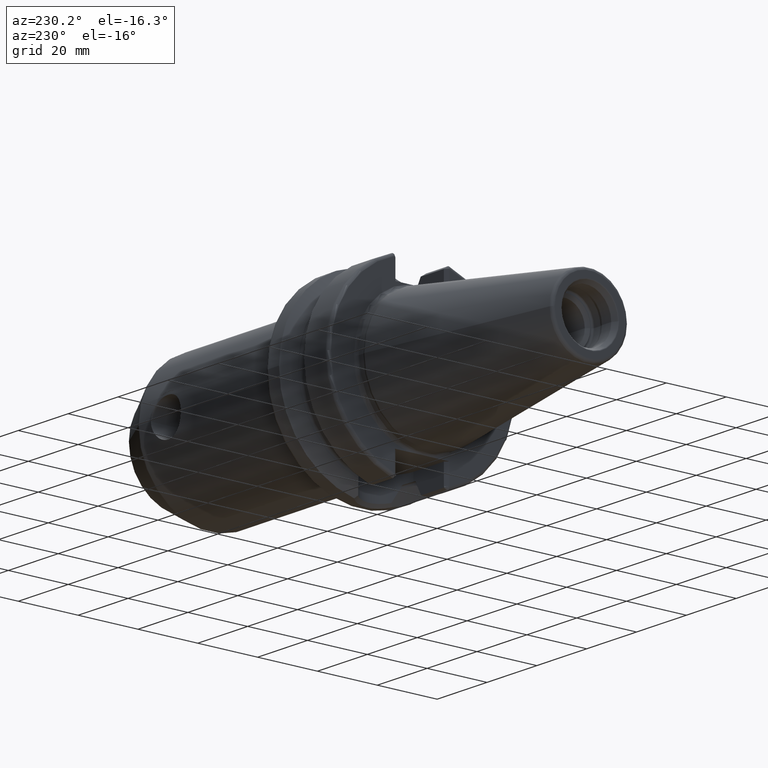
[diagram: clean part render]
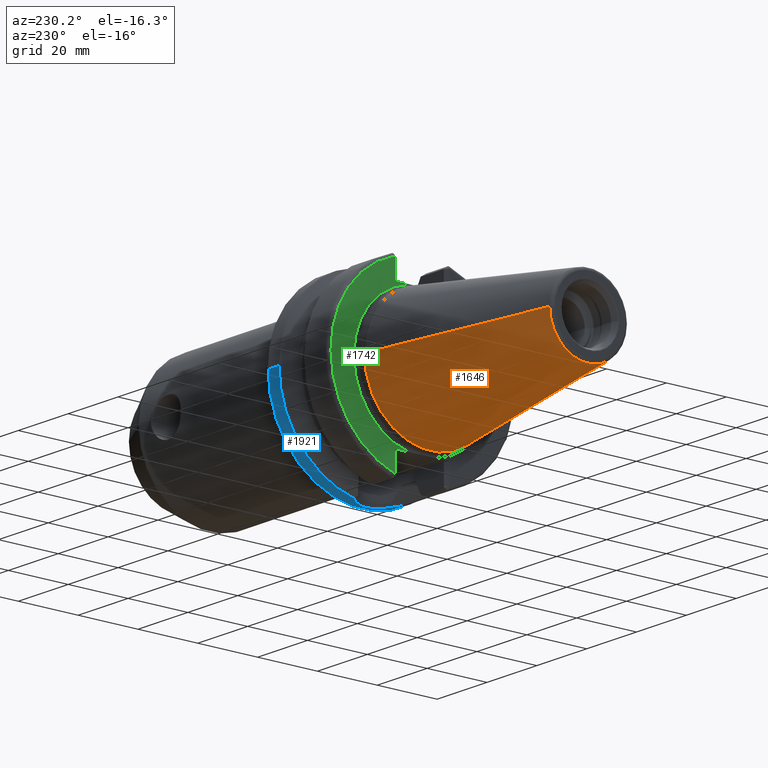
[diagram: same view with three faces highlighted in distinct colors, each labeled with its STEP entity id]
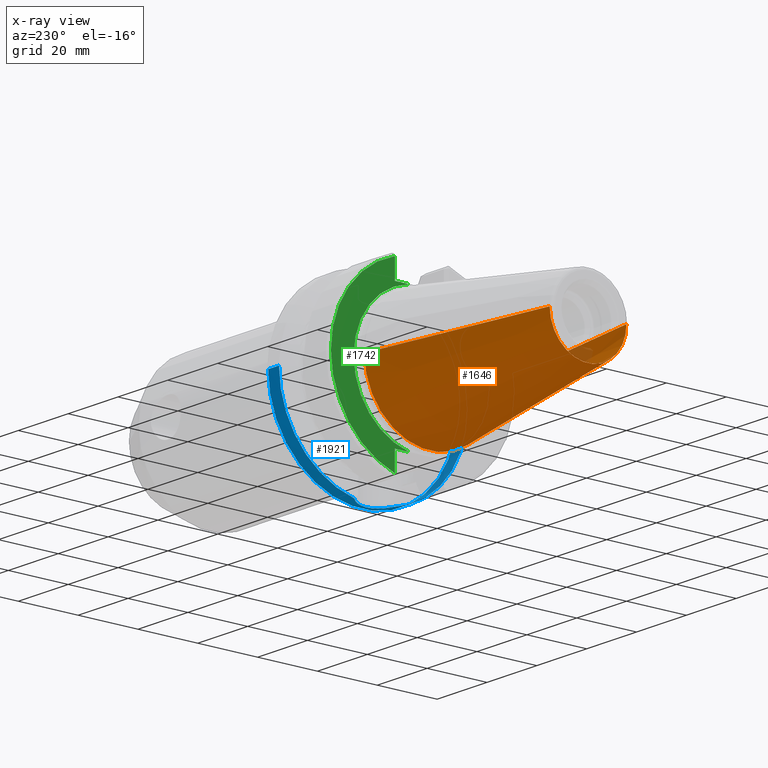
[diagram: x-ray of the same camera — body ghosted, the three highlighted faces saturated]
A machine part, auxiliary view with three faces highlighted in distinct colors.
The next image is the same camera in x-ray (body ghosted, the three faces saturated) — at least one of them is partly hidden behind the body in this view.
Their STEP definitions:

[orange] entity #1646 — the highlighted conical surface has half-angle 8.298 deg.
#32=CARTESIAN_POINT('',(-6.454431866917E1,0.E0,0.E0));
#33=DIRECTION('',(-1.E0,0.E0,0.E0));
#34=DIRECTION('',(0.E0,1.E0,0.E0));
#35=AXIS2_PLACEMENT_3D('',#32,#33,#34);
#47=DIRECTION('',(-9.895312636440E-1,-1.443186691705E-1,0.E0));
#48=VECTOR('',#47,6.394703124850E1);
#49=CARTESIAN_POINT('',(-1.266732031557E0,2.204025284980E1,0.E0));
#50=LINE('',#49,#48);
#51=DIRECTION('',(-9.895312636440E-1,1.443186691705E-1,0.E0));
#52=VECTOR('',#51,6.394703124850E1);
#53=CARTESIAN_POINT('',(-1.266732031557E0,-2.204025284980E1,0.E0));
#54=LINE('',#53,#52);
#55=CARTESIAN_POINT('',(-1.266732031557E0,0.E0,0.E0));
#56=DIRECTION('',(-1.E0,0.E0,0.E0));
#57=DIRECTION('',(0.E0,1.E0,0.E0));
#58=AXIS2_PLACEMENT_3D('',#55,#56,#57);
#1314=CARTESIAN_POINT('',(-6.454431866917E1,1.281150240261E1,0.E0));
#1316=VERTEX_POINT('',#1314);
#1318=CARTESIAN_POINT('',(-6.454431866917E1,-1.281150240261E1,0.E0));
#1320=VERTEX_POINT('',#1318);
#1533=CARTESIAN_POINT('',(-1.266732031557E0,2.204025284980E1,0.E0));
#1534=VERTEX_POINT('',#1533);
#1535=CARTESIAN_POINT('',(-1.266732031557E0,-2.204025284980E1,0.E0));
#1536=VERTEX_POINT('',#1535);
#1634=CARTESIAN_POINT('',(-3.290552535036E1,0.E0,0.E0));
#1635=DIRECTION('',(1.E0,0.E0,0.E0));
#1636=DIRECTION('',(0.E0,-1.E0,0.E0));
#1637=AXIS2_PLACEMENT_3D('',#1634,#1635,#1636);
#1638=CONICAL_SURFACE('',#1637,1.742587762621E1,8.297826828206E0);
#1639=ORIENTED_EDGE('',*,*,#1624,.T.);
#1640=ORIENTED_EDGE('',*,*,#1601,.T.);
#1641=ORIENTED_EDGE('',*,*,#1628,.F.);
#1643=ORIENTED_EDGE('',*,*,#1642,.F.);
#1644=EDGE_LOOP('',(#1639,#1640,#1641,#1643));
#1645=FACE_OUTER_BOUND('',#1644,.F.);
#1646=ADVANCED_FACE('',(#1645),#1638,.T.);
#36=CIRCLE('',#35,1.281150240261E1);
#59=CIRCLE('',#58,2.204025284980E1);
#1601=EDGE_CURVE('',#1316,#1320,#36,.T.);
#1624=EDGE_CURVE('',#1534,#1316,#50,.T.);
#1628=EDGE_CURVE('',#1536,#1320,#54,.T.);
#1642=EDGE_CURVE('',#1534,#1536,#59,.T.);

[blue] entity #1921 — the highlighted cylindrical surface (partial cylindrical patch) has radius 31.4875 mm, axis along (1, 0, 0).
#246=CARTESIAN_POINT('',(2.162727746897E1,0.E0,0.E0));
#247=DIRECTION('',(1.E0,0.E0,0.E0));
#248=DIRECTION('',(0.E0,-1.E0,0.E0));
#249=AXIS2_PLACEMENT_3D('',#246,#247,#248);
#251=DIRECTION('',(-1.E0,0.E0,0.E0));
#252=VECTOR('',#251,4.372722531031E0);
#253=CARTESIAN_POINT('',(2.6E1,-3.14875E1,0.E0));
#254=LINE('',#253,#252);
#255=CARTESIAN_POINT('',(2.6E1,0.E0,0.E0));
#256=DIRECTION('',(-1.E0,0.E0,0.E0));
#257=DIRECTION('',(0.E0,1.E0,0.E0));
#258=AXIS2_PLACEMENT_3D('',#255,#256,#257);
#260=DIRECTION('',(-1.E0,0.E0,0.E0));
#261=VECTOR('',#260,4.372722531031E0);
#262=CARTESIAN_POINT('',(2.6E1,3.14875E1,0.E0));
#263=LINE('',#262,#261);
#264=CARTESIAN_POINT('',(2.162727746897E1,0.E0,0.E0));
#265=DIRECTION('',(1.E0,0.E0,0.E0));
#266=DIRECTION('',(0.E0,2.025221356988E-1,-9.792776851088E-1));
#267=AXIS2_PLACEMENT_3D('',#264,#265,#266);
#269=CARTESIAN_POINT('',(2.162727746897E1,-6.376922817779E0,-3.083500464774E1));
#270=CARTESIAN_POINT('',(2.179639421098E1,-6.206831610819E0,-3.087018371088E1));
#271=CARTESIAN_POINT('',(2.232364867117E1,-5.632321227298E0,-3.098422972396E1));
#272=CARTESIAN_POINT('',(2.308132499159E1,-4.553413356838E0,-3.116719517710E1));
#273=CARTESIAN_POINT('',(2.375642364916E1,-3.096696697708E0,-3.134706212903E1));
#274=CARTESIAN_POINT('',(2.416388565718E1,-1.551520318298E0,-3.146240625515E1));
#275=CARTESIAN_POINT('',(2.429615986887E1,3.673173569156E-2,-3.150094402831E1));
#276=CARTESIAN_POINT('',(2.415103100304E1,1.624802494737E0,-3.145868929477E1));
#277=CARTESIAN_POINT('',(2.373074835246E1,3.167093598881E0,-3.133996423654E1));
#278=CARTESIAN_POINT('',(2.304347310477E1,4.618481554386E0,-3.115752883213E1));
#279=CARTESIAN_POINT('',(2.229119413287E1,5.670903386055E0,-3.097688944820E1));
#280=CARTESIAN_POINT('',(2.177863162319E1,6.224695230405E0,-3.086648974378E1));
#281=CARTESIAN_POINT('',(2.162727746897E1,6.376915747817E0,-3.083500610986E1));
#1370=CARTESIAN_POINT('',(2.162727746897E1,3.14875E1,0.E0));
#1372=VERTEX_POINT('',#1370);
#1374=CARTESIAN_POINT('',(2.162727746897E1,-3.14875E1,0.E0));
#1375=CARTESIAN_POINT('',(2.162727746897E1,-6.376922817779E0,
-3.083500464774E1));
#1376=VERTEX_POINT('',#1374);
#1377=VERTEX_POINT('',#1375);
#1378=CARTESIAN_POINT('',(2.6E1,3.14875E1,0.E0));
#1379=VERTEX_POINT('',#1378);
#1380=CARTESIAN_POINT('',(2.6E1,-3.14875E1,0.E0));
#1381=VERTEX_POINT('',#1380);
#1384=CARTESIAN_POINT('',(2.162727746897E1,6.376915747817E0,-3.083500610986E1));
#1385=VERTEX_POINT('',#1384);
#1902=CARTESIAN_POINT('',(-7.002E1,0.E0,0.E0));
#1903=DIRECTION('',(1.E0,0.E0,0.E0));
#1904=DIRECTION('',(0.E0,-1.E0,0.E0));
#1905=AXIS2_PLACEMENT_3D('',#1902,#1903,#1904);
#1906=CYLINDRICAL_SURFACE('',#1905,3.14875E1);
#1908=ORIENTED_EDGE('',*,*,#1907,.F.);
#1910=ORIENTED_EDGE('',*,*,#1909,.F.);
#1912=ORIENTED_EDGE('',*,*,#1911,.F.);
#1914=ORIENTED_EDGE('',*,*,#1913,.T.);
#1916=ORIENTED_EDGE('',*,*,#1915,.F.);
#1918=ORIENTED_EDGE('',*,*,#1917,.F.);
#1919=EDGE_LOOP('',(#1908,#1910,#1912,#1914,#1916,#1918));
#1920=FACE_OUTER_BOUND('',#1919,.F.);
#1921=ADVANCED_FACE('',(#1920),#1906,.T.);
#250=CIRCLE('',#249,3.14875E1);
#259=CIRCLE('',#258,3.14875E1);
#268=CIRCLE('',#267,3.14875E1);
#282=B_SPLINE_CURVE_WITH_KNOTS('',3,(#269,#270,#271,#272,#273,#274,#275,#276,
#277,#278,#279,#280,#281),.UNSPECIFIED.,.F.,.F.,(4,1,1,1,1,1,1,1,1,1,4),(0.E0,
5.022508536415E-2,1.633285299657E-1,2.764319745673E-1,3.895354191688E-1,
5.026388637704E-1,6.157423083720E-1,7.288457529735E-1,8.419491975751E-1,
9.550526421767E-1,1.E0),.UNSPECIFIED.);
#1907=EDGE_CURVE('',#1376,#1377,#250,.T.);
#1909=EDGE_CURVE('',#1381,#1376,#254,.T.);
#1911=EDGE_CURVE('',#1379,#1381,#259,.T.);
#1913=EDGE_CURVE('',#1379,#1372,#263,.T.);
#1915=EDGE_CURVE('',#1385,#1372,#268,.T.);
#1917=EDGE_CURVE('',#1377,#1385,#282,.T.);

[green] entity #1742 — the highlighted planar face has unit normal (1, 0, 0).
#96=CARTESIAN_POINT('',(2.E0,0.E0,0.E0));
#97=DIRECTION('',(-1.E0,0.E0,0.E0));
#98=DIRECTION('',(0.E0,1.E0,0.E0));
#99=AXIS2_PLACEMENT_3D('',#96,#97,#98);
#127=DIRECTION('',(2.137863157138E-6,2.138092596513E-6,9.999999999954E-1));
#128=VECTOR('',#127,6.649288203884E0);
#129=CARTESIAN_POINT('',(1.999985784732E0,9.094985783206E0,-2.909928820385E1));
#130=LINE('',#129,#128);
#131=DIRECTION('',(-4.462834027332E-6,-4.463945839096E-6,9.999999999801E-1));
#132=VECTOR('',#131,6.649296399125E0);
#133=CARTESIAN_POINT('',(2.E0,9.095E0,2.245E1));
#134=LINE('',#133,#132);
#592=CARTESIAN_POINT('',(2.E0,0.E0,0.E0));
#593=DIRECTION('',(-1.E0,0.E0,0.E0));
#594=DIRECTION('',(0.E0,2.983190614061E-1,9.544662055839E-1));
#595=AXIS2_PLACEMENT_3D('',#592,#593,#594);
#688=DIRECTION('',(0.E0,1.E0,0.E0));
#689=VECTOR('',#688,4.706022328605E0);
#690=CARTESIAN_POINT('',(2.E0,4.388977671395E0,2.245E1));
#691=LINE('',#690,#689);
#709=CARTESIAN_POINT('',(2.E0,0.E0,0.E0));
#710=DIRECTION('',(1.E0,0.E0,0.E0));
#711=DIRECTION('',(0.E0,1.E0,0.E0));
#712=AXIS2_PLACEMENT_3D('',#709,#710,#711);
#746=DIRECTION('',(0.E0,-1.E0,0.E0));
#747=VECTOR('',#746,4.706022328605E0);
#748=CARTESIAN_POINT('',(2.E0,9.095E0,-2.245E1));
#749=LINE('',#748,#747);
#1386=CARTESIAN_POINT('',(2.E0,2.2875E1,0.E0));
#1388=VERTEX_POINT('',#1386);
#1456=CARTESIAN_POINT('',(2.E0,4.388977671395E0,2.245E1));
#1457=VERTEX_POINT('',#1456);
#1464=CARTESIAN_POINT('',(2.E0,4.388977671395E0,-2.245E1));
#1465=VERTEX_POINT('',#1464);
#1502=CARTESIAN_POINT('',(2.E0,9.095027762300E0,2.909928051090E1));
#1504=VERTEX_POINT('',#1502);
#1506=CARTESIAN_POINT('',(2.E0,9.095E0,2.245E1));
#1507=VERTEX_POINT('',#1506);
#1516=CARTESIAN_POINT('',(1.999985784732E0,9.094985783206E0,-2.909928820385E1));
#1517=CARTESIAN_POINT('',(2.E0,9.095E0,-2.245E1));
#1518=VERTEX_POINT('',#1516);
#1519=VERTEX_POINT('',#1517);
#1722=CARTESIAN_POINT('',(2.E0,0.E0,0.E0));
#1723=DIRECTION('',(1.E0,0.E0,0.E0));
#1724=DIRECTION('',(0.E0,-1.E0,0.E0));
#1725=AXIS2_PLACEMENT_3D('',#1722,#1723,#1724);
#1726=PLANE('',#1725);
#1728=ORIENTED_EDGE('',*,*,#1727,.F.);
#1730=ORIENTED_EDGE('',*,*,#1729,.F.);
#1732=ORIENTED_EDGE('',*,*,#1731,.F.);
#1734=ORIENTED_EDGE('',*,*,#1733,.F.);
#1736=ORIENTED_EDGE('',*,*,#1735,.F.);
#1737=ORIENTED_EDGE('',*,*,#1708,.T.);
#1739=ORIENTED_EDGE('',*,*,#1738,.F.);
#1740=EDGE_LOOP('',(#1728,#1730,#1732,#1734,#1736,#1737,#1739));
#1741=FACE_OUTER_BOUND('',#1740,.F.);
#1742=ADVANCED_FACE('',(#1741),#1726,.F.);
#100=CIRCLE('',#99,2.2875E1);
#596=CIRCLE('',#595,3.04875E1);
#713=CIRCLE('',#712,2.2875E1);
#1708=EDGE_CURVE('',#1388,#1465,#100,.T.);
#1727=EDGE_CURVE('',#1518,#1519,#130,.T.);
#1729=EDGE_CURVE('',#1504,#1518,#596,.T.);
#1731=EDGE_CURVE('',#1507,#1504,#134,.T.);
#1733=EDGE_CURVE('',#1457,#1507,#691,.T.);
#1735=EDGE_CURVE('',#1388,#1457,#713,.T.);
#1738=EDGE_CURVE('',#1519,#1465,#749,.T.);